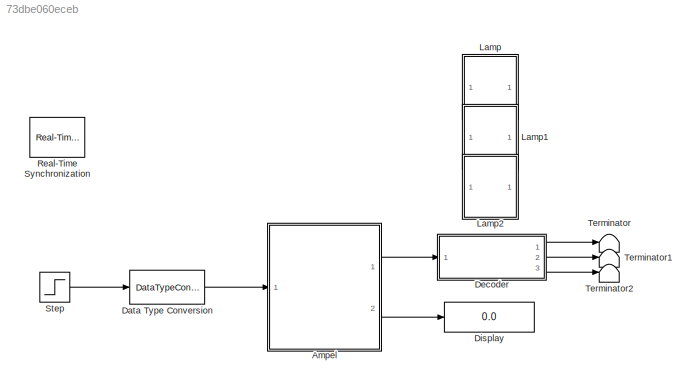
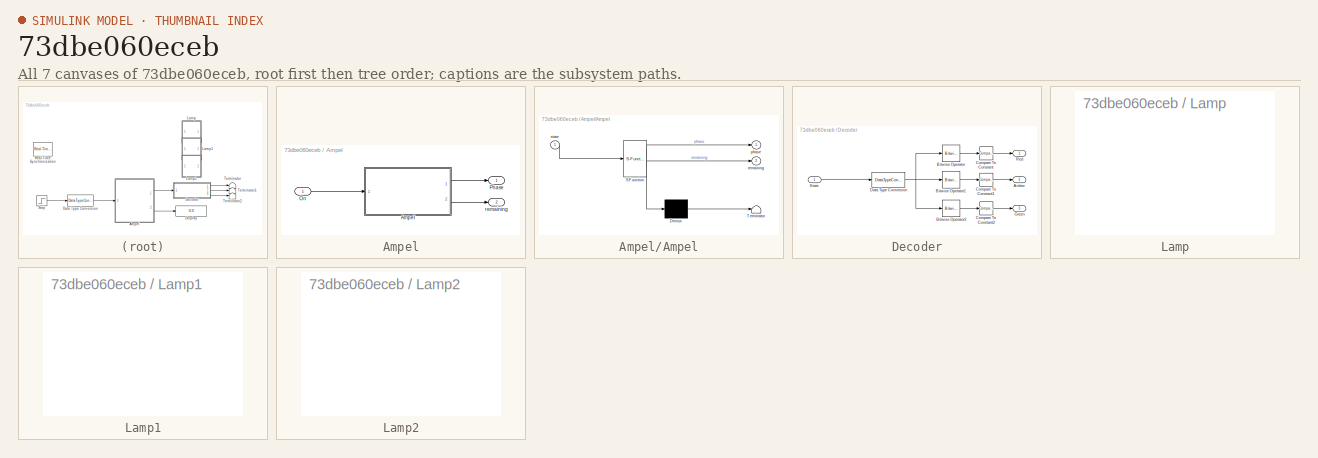
[diagram: thumbnail index - all 7 canvases of the model, root first then tree order]
MODEL slx_73dbe060eceb
KIND model
CONFIG AbsTol = auto
CONFIG FixedStep = 0.1
CONFIG MaxStep = 1e-2
CONFIG MinStep = auto
CONFIG RelTol = 1e-3
CONFIG SampleTimeConstraint = Unconstrained
CONFIG Solver = FixedStepAuto
CONFIG SolverMode = Auto
CONFIG SolverName = FixedStepAuto
CONFIG StartTime = 0.0
CONFIG StopTime = 100.0
WORKSPACE source: MAT-file member
WORKSPACE MCOS: class17 (value not decoded)
BLOCK [SubSystem] Ampel
  Ports = [1, 2]
  RequestExecContextInheritance = off
  Variant = off
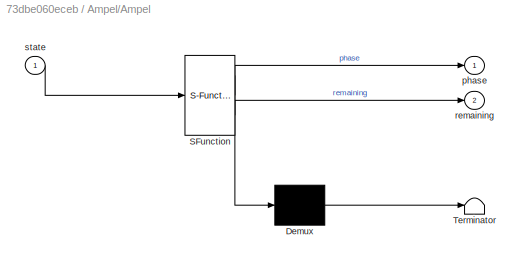
BLOCK [SubSystem] Ampel/Ampel
  ErrorFcn = Stateflow.Translate.translate
  PermitHierarchicalResolution = ExplicitOnly
  Ports = [1, 2]
  RequestExecContextInheritance = off
  SFBlockType = Chart
  TreatAsAtomicUnit = on
  Variant = off
BLOCK [Demux] Ampel/Ampel/ Demux 
  Outputs = 1
  Ports = [1, 1]
BLOCK [S-Function] Ampel/Ampel/ SFunction 
  EnableBusSupport = on
  FunctionName = sf_sfun
  Parameters = DUR_AMBER,DUR_GREEN,DUR_RED,DUR_REDAMBER
  PortCounts = [1 3]
  Ports = [1, 3]
  SFunctionDeploymentMode = off
  Tag = Stateflow S-Function Ampel 3
BLOCK [Terminator] Ampel/Ampel/ Terminator 
BLOCK [Outport] Ampel/Ampel/phase
  IconDisplay = Port number
BLOCK [Outport] Ampel/Ampel/remaining
  IconDisplay = Port number
  Port = 2
BLOCK [Inport] Ampel/Ampel/state
  IconDisplay = Port number
BLOCK [Inport] Ampel/On
  IconDisplay = Port number
  OutDataTypeStr = boolean
BLOCK [Outport] Ampel/Phase
  IconDisplay = Port number
  OutDataTypeStr = Enum: TrafficLightPhase
BLOCK [Outport] Ampel/remaining
  IconDisplay = Port number
  Port = 2
BLOCK [DataTypeConversion] Data Type Conversion
  RndMeth = Floor
  SaturateOnIntegerOverflow = off
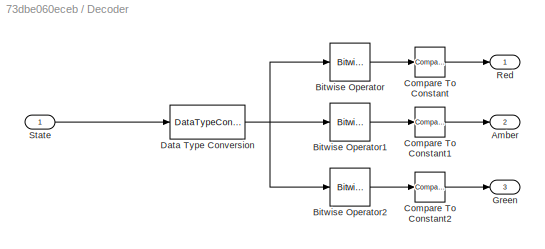
BLOCK [SubSystem] Decoder
  Ports = [1, 3]
  RequestExecContextInheritance = off
  Variant = off
BLOCK [Outport] Decoder/Amber
  IconDisplay = Port number
  Port = 2
BLOCK [Reference] Decoder/Bitwise Operator  REF=simulink/Logic and Bit
Operations/Bitwise
Operator
  Ports = [1, 1]
  SourceBlock = simulink/Logic and Bit\nOperations/Bitwise\nOperator
  SourceType = Bitwise Operator
BLOCK [Reference] Decoder/Bitwise Operator1  REF=simulink/Logic and Bit
Operations/Bitwise
Operator
  Ports = [1, 1]
  SourceBlock = simulink/Logic and Bit\nOperations/Bitwise\nOperator
  SourceType = Bitwise Operator
BLOCK [Reference] Decoder/Bitwise Operator2  REF=simulink/Logic and Bit
Operations/Bitwise
Operator
  Ports = [1, 1]
  SourceBlock = simulink/Logic and Bit\nOperations/Bitwise\nOperator
  SourceType = Bitwise Operator
BLOCK [Reference] Decoder/Compare To Constant  REF=simulink/Logic and Bit
Operations/Compare
To Constant
  Ports = [1, 1]
  SourceBlock = simulink/Logic and Bit\nOperations/Compare\nTo Constant
  SourceType = Compare To Constant
BLOCK [Reference] Decoder/Compare To Constant1  REF=simulink/Logic and Bit
Operations/Compare
To Constant
  Ports = [1, 1]
  SourceBlock = simulink/Logic and Bit\nOperations/Compare\nTo Constant
  SourceType = Compare To Constant
BLOCK [Reference] Decoder/Compare To Constant2  REF=simulink/Logic and Bit
Operations/Compare
To Constant
  Ports = [1, 1]
  SourceBlock = simulink/Logic and Bit\nOperations/Compare\nTo Constant
  SourceType = Compare To Constant
BLOCK [DataTypeConversion] Decoder/Data Type Conversion
  OutDataTypeStr = int32
  RndMeth = Floor
  SaturateOnIntegerOverflow = off
BLOCK [Outport] Decoder/Green
  IconDisplay = Port number
  Port = 3
BLOCK [Outport] Decoder/Red
  IconDisplay = Port number
BLOCK [Inport] Decoder/State
  IconDisplay = Port number
BLOCK [Display] Display
  Decimation = 1
  Ports = [1]
BLOCK [SubSystem] Lamp
  DialogController = hmiCreateDDGDialog
  IsWebBlock = on
  MaskHideContents = on
  Ports = []
  RequestExecContextInheritance = off
  Variant = off
BLOCK [SubSystem] Lamp1
  DialogController = hmiCreateDDGDialog
  IsWebBlock = on
  MaskHideContents = on
  Ports = []
  RequestExecContextInheritance = off
  Variant = off
BLOCK [SubSystem] Lamp2
  DialogController = hmiCreateDDGDialog
  IsWebBlock = on
  MaskHideContents = on
  Ports = []
  RequestExecContextInheritance = off
  Variant = off
BLOCK [Reference] Real-Time Synchronization  REF=sldrtlib/Real-Time
Synchronization
  Ports = []
  SourceBlock = sldrtlib/Real-Time\nSynchronization
  SourceType = Simulink Desktop Real-Time Synchronization
BLOCK [Step] Step
  Before = -1
  SampleTime = 0
BLOCK [Terminator] Terminator
BLOCK [Terminator] Terminator1
BLOCK [Terminator] Terminator2
LINE Ampel/Ampel:1 -> Ampel/Phase:1
LINE Ampel/Ampel:2 -> Ampel/remaining:1
LINE Ampel/On:1 -> Ampel/Ampel:1
LINE Ampel:1 -> Decoder:1
LINE Ampel:2 -> Display:1
LINE Data Type Conversion:1 -> Ampel:1
LINE Decoder/Bitwise Operator1:1 -> Decoder/Compare To Constant1:1
LINE Decoder/Bitwise Operator2:1 -> Decoder/Compare To Constant2:1
LINE Decoder/Bitwise Operator:1 -> Decoder/Compare To Constant:1
LINE Decoder/Compare To Constant1:1 -> Decoder/Amber:1
LINE Decoder/Compare To Constant2:1 -> Decoder/Green:1
LINE Decoder/Compare To Constant:1 -> Decoder/Red:1
NET Decoder/Data Type Conversion:1 -> Decoder/Bitwise Operator1:1, Decoder/Bitwise Operator2:1, Decoder/Bitwise Operator:1
LINE Decoder/State:1 -> Decoder/Data Type Conversion:1
LINE Decoder:1 -> Terminator:1
LINE Decoder:2 -> Terminator1:1
LINE Decoder:3 -> Terminator2:1
LINE Step:1 -> Data Type Conversion:1
note: NET lines group one-source signal fan-out (src -> all destinations, sorted); 1:1 wires keep LINE
CHART Ampel/Ampel states=6 transitions=8
  STATE_LABEL 'Off\ndu: phase = TrafficLightPhase.Off;'
  STATE_LABEL 'On'
  STATE_LABEL 'RedAmber\ndu:\nphase = TrafficLightPhase.RedAmber;\nremaining = DUR_REDAMBER - temporalCount(sec);'
  STATE_LABEL 'Red\ndu:\nphase = TrafficLightPhase.Red;\nremaining = DUR_RED - temporalCount(sec);'
  STATE_LABEL 'Amber\ndu:\nphase = TrafficLightPhase.Amber;\nremaining = DUR_AMBER - temporalCount(sec);'
  STATE_LABEL 'Green\ndu:\nphase = TrafficLightPhase.Green;\nremaining = DUR_GREEN - temporalCount(sec);'
  STATE_LABEL 'after(DUR_RED, sec)'
  STATE_LABEL 'after(DUR_AMBER, sec)'
  STATE_LABEL 'after(DUR_REDAMBER, sec)'
  STATE_LABEL 'after(DUR_GREEN, sec)'
  STATE_LABEL 'RedAmber\ndu:\nphase = TrafficLightPhase.RedAmber;\nremaining = DUR_REDAMBER - temporalCount(sec);'
  STATE_LABEL 'Red\ndu:\nphase = TrafficLightPhase.Red;\nremaining = DUR_RED - temporalCount(sec);'
  STATE_LABEL 'Amber\ndu:\nphase = TrafficLightPhase.Amber;\nremaining = DUR_AMBER - temporalCount(sec);'
  STATE_LABEL 'Green\ndu:\nphase = TrafficLightPhase.Green;\nremaining = DUR_GREEN - temporalCount(sec);'
